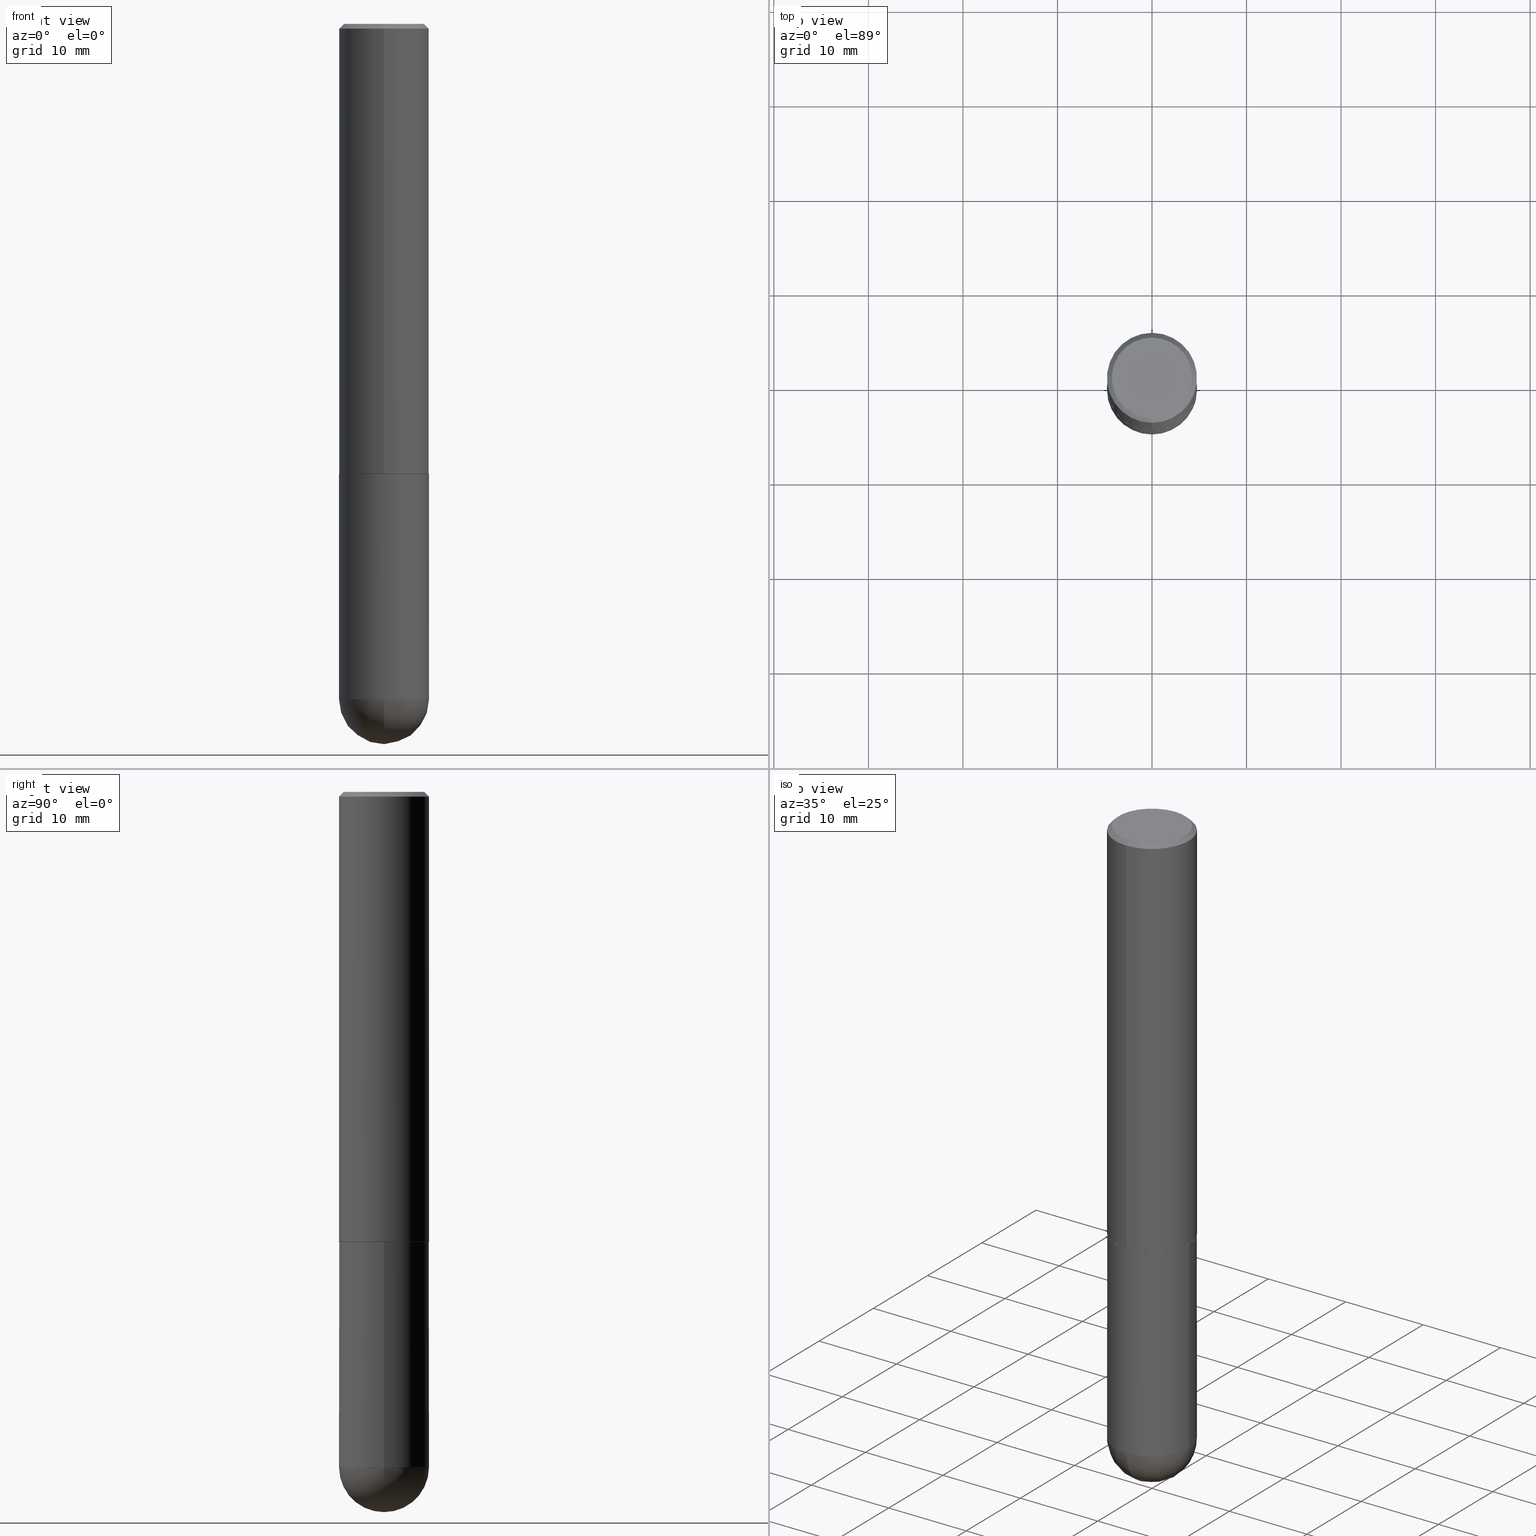
[diagram: canonical four-view strip — front | top / right | iso, engineering-drawing reading convention]
A machine part, canonical four-view strip (front | top / right | iso — engineering-drawing reading convention). The complete STEP part file that produces these views, byte-faithful:
ISO-10303-21;
HEADER;
FILE_DESCRIPTION (( 'STEP AP203' ),
    '1' );
FILE_NAME ('31894.STEP',
    '2024-02-21T17:06:44',
    ( '' ),
    ( '' ),
    'SwSTEP 2.0',
    'SolidWorks 2023',
    '' );
FILE_SCHEMA (( 'CONFIG_CONTROL_DESIGN' ));
ENDSEC;

DATA;
#1 = CARTESIAN_POINT ( 'NONE',  ( 4.889506548922472903E-31, -6.985012041994642398E-17, -0.02000000000000004205 ) ) ;
#2 = DIRECTION ( 'NONE',  ( 1.000000000000000000, -6.982962677686270655E-15, 0.000000000000000000 ) ) ;
#3 = CIRCLE ( 'NONE', #60, 0.1875000000000000555 ) ;
#4 = ORIENTED_EDGE ( 'NONE', *, *, #354, .T. ) ;
#5 = CALENDAR_DATE ( 2024, 21, 2 ) ;
#6 = CIRCLE ( 'NONE', #405, 0.1875000000000000278 ) ;
#7 = ADVANCED_FACE ( 'NONE', ( #130 ), #317, .F. ) ;
#8 = DIRECTION ( 'NONE',  ( -1.000000000000000000, 6.982962677686266711E-15, -4.883557194083113462E-29 ) ) ;
#9 = APPROVAL_DATE_TIME ( #166, #205 ) ;
#10 = DIRECTION ( 'NONE',  ( -2.444753274461231407E-29, 3.492506020997314198E-15, 1.000000000000000000 ) ) ;
#11 = PERSON_AND_ORGANIZATION ( #357, #67 ) ;
#12 = DIRECTION ( 'NONE',  ( -6.982962677686266711E-15, -1.000000000000000000, 3.492506020997314198E-15 ) ) ;
#13 = ADVANCED_FACE ( 'NONE', ( #37 ), #318, .T. ) ;
#14 = VECTOR ( 'NONE', #386, 39.37007874015748143 ) ;
#15 = CIRCLE ( 'NONE', #148, 0.1875000000000002498 ) ;
#16 = APPLICATION_PROTOCOL_DEFINITION ( 'international standard', 'config_control_design', 1994, #66 ) ;
#17 = CARTESIAN_POINT ( 'NONE',  ( 4.583912389614808468E-29, -6.548448789369963973E-15, -1.874999999999999778 ) ) ;
#18 = LINE ( 'NONE', #149, #41 ) ;
#19 = EDGE_CURVE ( 'NONE', #367, #93, #163, .T. ) ;
#20 = AXIS2_PLACEMENT_3D ( 'NONE', #45, #291, #171 ) ;
#21 = PERSON_AND_ORGANIZATION ( #357, #67 ) ;
#22 = VERTEX_POINT ( 'NONE', #104 ) ;
#23 = FACE_OUTER_BOUND ( 'NONE', #277, .T. ) ;
#24 = CARTESIAN_POINT ( 'NONE',  ( -1.332267629550121781E-15, -0.1875000000000102141, -2.812499999999999556 ) ) ;
#25 = CARTESIAN_POINT ( 'NONE',  ( 4.581467636340347610E-29, -6.544956283348966620E-15, -1.874000000000000110 ) ) ;
#26 = CIRCLE ( 'NONE', #20, 0.1674999999999998990 ) ;
#27 = EDGE_LOOP ( 'NONE', ( #342, #310, #407, #62 ) ) ;
#28 = PERSON_AND_ORGANIZATION_ROLE ( 'creator' ) ;
#29 = EDGE_LOOP ( 'NONE', ( #321, #54 ) ) ;
#30 = EDGE_CURVE ( 'NONE', #158, #272, #352, .T. ) ;
#31 = AXIS2_PLACEMENT_3D ( 'NONE', #280, #100, #2 ) ;
#32 = EDGE_LOOP ( 'NONE', ( #224, #161 ) ) ;
#33 = CALENDAR_DATE ( 2024, 21, 2 ) ;
#34 = DIRECTION ( 'NONE',  ( -4.937700262165728178E-15, -0.7071067811867141062, 0.7071067811863809283 ) ) ;
#35 = SHAPE_DEFINITION_REPRESENTATION ( #194, #388 ) ;
#36 = CYLINDRICAL_SURFACE ( 'NONE', #140, 0.1875000000000000555 ) ;
#37 = FACE_OUTER_BOUND ( 'NONE', #192, .T. ) ;
#38 = DATE_AND_TIME ( #33, #404 ) ;
#39 = EDGE_CURVE ( 'NONE', #127, #344, #356, .T. ) ;
#40 = CARTESIAN_POINT ( 'NONE',  ( 4.889506548922472903E-31, -6.985012041994642398E-17, -0.02000000000000004205 ) ) ;
#41 = VECTOR ( 'NONE', #368, 39.37007874015748143 ) ;
#42 = CARTESIAN_POINT ( 'NONE',  ( 6.546761239481810431E-29, -1.029397363363639678E-14, -2.812500000000000000 ) ) ;
#43 = FACE_OUTER_BOUND ( 'NONE', #27, .T. ) ;
#44 = ORIENTED_EDGE ( 'NONE', *, *, #354, .F. ) ;
#45 = CARTESIAN_POINT ( 'NONE',  ( -3.030479401514550430E-45, 4.329257952882943825E-31, 1.239584964737351732E-16 ) ) ;
#46 = DIRECTION ( 'NONE',  ( 2.444753274461231407E-29, -3.492506020997314198E-15, -1.000000000000000000 ) ) ;
#47 = DIRECTION ( 'NONE',  ( -2.444753274461231407E-29, 3.492506020997314198E-15, 1.000000000000000000 ) ) ;
#48 = DIRECTION ( 'NONE',  ( 1.000000000000000000, 0.000000000000000000, 0.000000000000000000 ) ) ;
#49 = SPHERICAL_SURFACE ( 'NONE', #373, 0.1875000000000003331 ) ;
#50 = CC_DESIGN_PERSON_AND_ORGANIZATION_ASSIGNMENT ( #154, #28, ( #346 ) ) ;
#51 = DIRECTION ( 'NONE',  ( -7.105427357600999492E-15, -1.000000000000000000, 0.000000000000000000 ) ) ;
#52 = CARTESIAN_POINT ( 'NONE',  ( 4.585254011597131119E-29, -6.546527510330898707E-15, -1.875000000000000000 ) ) ;
#53 = APPLICATION_PROTOCOL_DEFINITION ( 'international standard', 'config_control_design', 1994, #101 ) ;
#54 = ORIENTED_EDGE ( 'NONE', *, *, #278, .T. ) ;
#55 = DIMENSIONAL_EXPONENTS ( 1.000000000000000000, 0.000000000000000000, 0.000000000000000000, 0.000000000000000000, 0.000000000000000000, 0.000000000000000000, 0.000000000000000000 ) ;
#56 = AXIS2_PLACEMENT_3D ( 'NONE', #42, #8, #136 ) ;
#57 = CARTESIAN_POINT ( 'NONE',  ( 4.889506548922472903E-31, -6.985012041994642398E-17, -0.02000000000000004205 ) ) ;
#58 = CALENDAR_DATE ( 2024, 21, 2 ) ;
#59 = DIRECTION ( 'NONE',  ( -6.982962677686266711E-15, -1.000000000000000000, 2.913971193241876822E-15 ) ) ;
#60 = AXIS2_PLACEMENT_3D ( 'NONE', #264, #137, #232 ) ;
#61 = VECTOR ( 'NONE', #80, 39.37007874015748854 ) ;
#62 = ORIENTED_EDGE ( 'NONE', *, *, #231, .F. ) ;
#63 = DIRECTION ( 'NONE',  ( 1.000000000000000000, -6.982962677686265922E-15, 4.876176775795935793E-29 ) ) ;
#64 = CC_DESIGN_DATE_AND_TIME_ASSIGNMENT ( #38, #384, ( #146 ) ) ;
#65 = ORIENTED_EDGE ( 'NONE', *, *, #128, .F. ) ;
#66 = APPLICATION_CONTEXT ( 'configuration controlled 3d designs of mechanical parts and assemblies' ) ;
#67 = ORGANIZATION ( 'UNSPECIFIED', 'UNSPECIFIED', '' ) ;
#68 = AXIS2_PLACEMENT_3D ( 'NONE', #243, #301, #401 ) ;
#69 = ORIENTED_EDGE ( 'NONE', *, *, #138, .F. ) ;
#70 = ADVANCED_FACE ( 'NONE', ( #188 ), #341, .T. ) ;
#71 = VERTEX_POINT ( 'NONE', #311 ) ;
#72 = FACE_OUTER_BOUND ( 'NONE', #289, .T. ) ;
#73 = DIRECTION ( 'NONE',  ( -2.444753274461231407E-29, 3.492506020997314198E-15, 1.000000000000000000 ) ) ;
#74 = CARTESIAN_POINT ( 'NONE',  ( -1.302322539388442648E-15, -0.1865000000000065217, -1.874999999999999334 ) ) ;
#75 = CIRCLE ( 'NONE', #338, 0.1864999999999999714 ) ;
#76 = CARTESIAN_POINT ( 'NONE',  ( 1.309305502066175797E-15, 0.1874999999999999722, -0.02000000000000069431 ) ) ;
#77 = DIRECTION ( 'NONE',  ( 1.000000000000000000, -6.982962677686266711E-15, 0.000000000000000000 ) ) ;
#78 = CARTESIAN_POINT ( 'NONE',  ( 4.583912389614808468E-29, -6.548448789369963973E-15, -1.874999999999999778 ) ) ;
#79 = CC_DESIGN_PERSON_AND_ORGANIZATION_ASSIGNMENT ( #159, #279, ( #146 ) ) ;
#80 = DIRECTION ( 'NONE',  ( -4.851104656540962697E-15, -0.7071067811865497932, -0.7071067811865451302 ) ) ;
#81 = EDGE_LOOP ( 'NONE', ( #169, #227, #245, #400 ) ) ;
#82 = DIRECTION ( 'NONE',  ( -2.444753274461231407E-29, 3.492506020997314198E-15, 1.000000000000000000 ) ) ;
#83 = LOCAL_TIME ( 12, 6, 44.00000000000000000, #343 ) ;
#84 = DIRECTION ( 'NONE',  ( -2.445468806185136597E-29, 3.491481338843145583E-15, 1.000000000000000000 ) ) ;
#85 = ORIENTED_EDGE ( 'NONE', *, *, #323, .F. ) ;
#86 = ADVANCED_FACE ( 'NONE', ( #409 ), #126, .T. ) ;
#87 = AXIS2_PLACEMENT_3D ( 'NONE', #107, #162, #164 ) ;
#88 = DIRECTION ( 'NONE',  ( -2.444753274461231687E-29, 3.492506020997314198E-15, 1.000000000000000000 ) ) ;
#89 = CIRCLE ( 'NONE', #395, 0.1875000000000000555 ) ;
#90 = CLOSED_SHELL ( 'NONE', ( #327, #332, #13, #261, #70 ) ) ;
#91 = AXIS2_PLACEMENT_3D ( 'NONE', #223, #156, #63 ) ;
#92 = EDGE_CURVE ( 'NONE', #312, #102, #391, .T. ) ;
#93 = VERTEX_POINT ( 'NONE', #392 ) ;
#94 = DATE_AND_TIME ( #185, #83 ) ;
#95 = ORIENTED_EDGE ( 'NONE', *, *, #110, .F. ) ;
#96 = COORDINATED_UNIVERSAL_TIME_OFFSET ( 5, 0, .BEHIND. ) ;
#97 = ORIENTED_EDGE ( 'NONE', *, *, #19, .F. ) ;
#98 = EDGE_CURVE ( 'NONE', #272, #312, #269, .T. ) ;
#99 = AXIS2_PLACEMENT_3D ( 'NONE', #238, #325, #48 ) ;
#100 = DIRECTION ( 'NONE',  ( -2.445468806185136597E-29, 3.491481338843145583E-15, 1.000000000000000000 ) ) ;
#101 = APPLICATION_CONTEXT ( 'configuration controlled 3d designs of mechanical parts and assemblies' ) ;
#102 = VERTEX_POINT ( 'NONE', #330 ) ;
#103 = ORIENTED_EDGE ( 'NONE', *, *, #155, .T. ) ;
#104 = CARTESIAN_POINT ( 'NONE',  ( 1.239475875289312499E-15, 0.1674999999999998990, -4.610362620433146916E-16 ) ) ;
#105 = DIRECTION ( 'NONE',  ( -6.982962677686265922E-15, -1.000000000000000000, 2.929595703661408850E-15 ) ) ;
#106 = EDGE_CURVE ( 'NONE', #93, #251, #6, .T. ) ;
#107 = CARTESIAN_POINT ( 'NONE',  ( 0.000000000000000000, 0.000000000000000000, 0.000000000000000000 ) ) ;
#108 = DIRECTION ( 'NONE',  ( -2.445468806185136597E-29, 3.491481338843145583E-15, 1.000000000000000000 ) ) ;
#109 = CALENDAR_DATE ( 2024, 21, 2 ) ;
#110 = EDGE_CURVE ( 'NONE', #312, #272, #15, .T. ) ;
#111 = AXIS2_PLACEMENT_3D ( 'NONE', #389, #10, #262 ) ;
#112 =( CONVERSION_BASED_UNIT ( 'INCH', #211 ) LENGTH_UNIT ( ) NAMED_UNIT ( #55 ) );
#113 = AXIS2_PLACEMENT_3D ( 'NONE', #362, #337, #398 ) ;
#114 = CARTESIAN_POINT ( 'NONE',  ( 6.546761239481810431E-29, -1.029397363363639678E-14, -2.812500000000000000 ) ) ;
#115 = EDGE_LOOP ( 'NONE', ( #336, #281, #331, #220, #209 ) ) ;
#116 = CARTESIAN_POINT ( 'NONE',  ( -0.1875000000000000555, -6.850891758363436324E-15, -2.812500000000000000 ) ) ;
#117 = EDGE_CURVE ( 'NONE', #71, #186, #363, .T. ) ;
#118 = DIRECTION ( 'NONE',  ( 6.982962677686266711E-15, 1.000000000000000000, -2.913971193241875639E-15 ) ) ;
#119 = ORIENTED_EDGE ( 'NONE', *, *, #240, .F. ) ;
#120 = CC_DESIGN_SECURITY_CLASSIFICATION ( #146, ( #346 ) ) ;
#121 = DIRECTION ( 'NONE',  ( -6.982962677686265922E-15, -1.000000000000000000, 2.929595703661408850E-15 ) ) ;
#122 = AXIS2_PLACEMENT_3D ( 'NONE', #177, #402, #51 ) ;
#123 = EDGE_CURVE ( 'NONE', #412, #195, #365, .T. ) ;
#124 = CC_DESIGN_APPROVAL ( #208, ( #339 ) ) ;
#125 = VECTOR ( 'NONE', #34, 39.37007874015748143 ) ;
#126 = CYLINDRICAL_SURFACE ( 'NONE', #320, 0.1875000000000001388 ) ;
#127 = VERTEX_POINT ( 'NONE', #116 ) ;
#128 = EDGE_CURVE ( 'NONE', #367, #186, #326, .T. ) ;
#129 = CARTESIAN_POINT ( 'NONE',  ( 4.583912389614809028E-29, -6.548448789369964762E-15, -1.875000000000000000 ) ) ;
#130 = FACE_OUTER_BOUND ( 'NONE', #29, .T. ) ;
#131 = CARTESIAN_POINT ( 'NONE',  ( 0.000000000000000000, 0.000000000000000000, 0.000000000000000000 ) ) ;
#132 = AXIS2_PLACEMENT_3D ( 'NONE', #40, #46, #167 ) ;
#133 = LOCAL_TIME ( 12, 6, 44.00000000000000000, #298 ) ;
#134 = ORIENTED_EDGE ( 'NONE', *, *, #98, .T. ) ;
#135 = CARTESIAN_POINT ( 'NONE',  ( 1.309305502066220959E-15, 0.1874999999999934497, -1.875000000000000666 ) ) ;
#136 = DIRECTION ( 'NONE',  ( 6.982962677686266711E-15, 1.000000000000000000, -2.913971193241875639E-15 ) ) ;
#137 = DIRECTION ( 'NONE',  ( -2.444753274461231407E-29, 3.492506020997314198E-15, 1.000000000000000000 ) ) ;
#138 = EDGE_CURVE ( 'NONE', #344, #367, #288, .T. ) ;
#139 = CARTESIAN_POINT ( 'NONE',  ( -0.1875000000000000278, -6.850891758363434746E-15, -1.875000000000000000 ) ) ;
#140 = AXIS2_PLACEMENT_3D ( 'NONE', #131, #225, #349 ) ;
#141 = DIRECTION ( 'NONE',  ( -2.444753274461231407E-29, 3.492506020997314198E-15, 1.000000000000000000 ) ) ;
#142 = EDGE_CURVE ( 'NONE', #272, #195, #18, .T. ) ;
#143 = DATE_AND_TIME ( #58, #172 ) ;
#144 = DIRECTION ( 'NONE',  ( -2.444753274461231407E-29, 3.492506020997314198E-15, 1.000000000000000000 ) ) ;
#145 = LOCAL_TIME ( 12, 6, 44.00000000000000000, #380 ) ;
#146 = SECURITY_CLASSIFICATION ( '', '', #408 ) ;
#147 = CARTESIAN_POINT ( 'NONE',  ( -1.217738394604446442E-15, -0.1674999999999998990, 7.089532549907849394E-16 ) ) ;
#148 = AXIS2_PLACEMENT_3D ( 'NONE', #25, #144, #59 ) ;
#149 = CARTESIAN_POINT ( 'NONE',  ( -1.309305502066175994E-15, -0.1875000000000001388, 6.548448789369969298E-16 ) ) ;
#150 =( NAMED_UNIT ( * ) PLANE_ANGLE_UNIT ( ) SI_UNIT ( $, .RADIAN. ) );
#151 = ORIENTED_EDGE ( 'NONE', *, *, #128, .T. ) ;
#152 = DIRECTION ( 'NONE',  ( 6.982962677686265922E-15, 1.000000000000000000, -3.483106191921934371E-15 ) ) ;
#153 = VECTOR ( 'NONE', #88, 39.37007874015748143 ) ;
#154 = PERSON_AND_ORGANIZATION ( #357, #67 ) ;
#155 = EDGE_CURVE ( 'NONE', #284, #158, #309, .T. ) ;
#156 = DIRECTION ( 'NONE',  ( -2.445468806185136597E-29, 3.491481338843145583E-15, 1.000000000000000000 ) ) ;
#157 = ORIENTED_EDGE ( 'NONE', *, *, #240, .T. ) ;
#158 = VERTEX_POINT ( 'NONE', #207 ) ;
#159 = PERSON_AND_ORGANIZATION ( #357, #67 ) ;
#160 = APPROVAL_PERSON_ORGANIZATION ( #307, #208, #265 ) ;
#161 = ORIENTED_EDGE ( 'NONE', *, *, #406, .T. ) ;
#162 = DIRECTION ( 'NONE',  ( -2.444753274461231407E-29, 3.492506020997314198E-15, 1.000000000000000000 ) ) ;
#163 = LINE ( 'NONE', #259, #14 ) ;
#164 = DIRECTION ( 'NONE',  ( -6.982962677686266711E-15, -1.000000000000000000, 3.492506020997314198E-15 ) ) ;
#165 = EDGE_LOOP ( 'NONE', ( #229, #348, #218, #313 ) ) ;
#166 = DATE_AND_TIME ( #5, #145 ) ;
#167 = DIRECTION ( 'NONE',  ( 6.982962677686265922E-15, 1.000000000000000000, -3.483106191921934371E-15 ) ) ;
#168 = EDGE_CURVE ( 'NONE', #158, #284, #75, .T. ) ;
#169 = ORIENTED_EDGE ( 'NONE', *, *, #92, .F. ) ;
#170 = DIRECTION ( 'NONE',  ( 4.937700262164546464E-15, 0.7071067811865447972, -0.7071067811865500152 ) ) ;
#171 = DIRECTION ( 'NONE',  ( -6.982962677686265922E-15, -1.000000000000000000, 3.492506020997314198E-15 ) ) ;
#172 = LOCAL_TIME ( 12, 6, 44.00000000000000000, #335 ) ;
#173 = ADVANCED_FACE ( 'NONE', ( #299 ), #340, .T. ) ;
#174 = CONICAL_SURFACE ( 'NONE', #132, 0.1875000000000000555, 0.7853981633974481680 ) ;
#175 = CARTESIAN_POINT ( 'NONE',  ( 0.1875000000000000555, -9.492464889979800759E-15, -2.812500000000000000 ) ) ;
#176 = CARTESIAN_POINT ( 'NONE',  ( 4.583912389614808468E-29, -6.548448789369963973E-15, -1.874999999999999778 ) ) ;
#177 = CARTESIAN_POINT ( 'NONE',  ( 6.546761239481810431E-29, -1.029397363363639678E-14, -2.812500000000000000 ) ) ;
#178 = CARTESIAN_POINT ( 'NONE',  ( 6.877881017395696678E-29, -9.819791265496348060E-15, -2.812500000000000000 ) ) ;
#179 = APPROVAL_STATUS ( 'not_yet_approved' ) ;
#180 = ORIENTED_EDGE ( 'NONE', *, *, #92, .T. ) ;
#181 = DIRECTION ( 'NONE',  ( 2.444753274461231407E-29, -3.492506020997314198E-15, -1.000000000000000000 ) ) ;
#182 = CC_DESIGN_PERSON_AND_ORGANIZATION_ASSIGNMENT ( #21, #271, ( #339 ) ) ;
#183 = DIRECTION ( 'NONE',  ( -2.444753274461231407E-29, 3.492506020997314198E-15, 1.000000000000000000 ) ) ;
#184 = CC_DESIGN_PERSON_AND_ORGANIZATION_ASSIGNMENT ( #187, #314, ( #346 ) ) ;
#185 = CALENDAR_DATE ( 2024, 21, 2 ) ;
#186 = VERTEX_POINT ( 'NONE', #305 ) ;
#187 = PERSON_AND_ORGANIZATION ( #357, #67 ) ;
#188 = FACE_OUTER_BOUND ( 'NONE', #115, .T. ) ;
#189 = EDGE_LOOP ( 'NONE', ( #157, #378, #212, #97, #151 ) ) ;
#190 = PLANE ( 'NONE',  #382 ) ;
#191 = ADVANCED_FACE ( 'NONE', ( #23 ), #190, .F. ) ;
#192 = EDGE_LOOP ( 'NONE', ( #44, #242, #65, #69 ) ) ;
#193 = VECTOR ( 'NONE', #394, 39.37007874015748143 ) ;
#194 = PRODUCT_DEFINITION_SHAPE ( 'NONE', 'NONE',  #339 ) ;
#195 = VERTEX_POINT ( 'NONE', #358 ) ;
#196 = FACE_OUTER_BOUND ( 'NONE', #189, .T. ) ;
#197 = ORIENTED_EDGE ( 'NONE', *, *, #30, .F. ) ;
#198 = ORIENTED_EDGE ( 'NONE', *, *, #117, .F. ) ;
#199 = EDGE_CURVE ( 'NONE', #102, #195, #89, .T. ) ;
#200 = CARTESIAN_POINT ( 'NONE',  ( 1.332267629550212500E-15, 0.1874999999999936995, -1.874000000000000554 ) ) ;
#201 = CLOSED_SHELL ( 'NONE', ( #316, #297, #267, #173, #86, #369, #191, #7 ) ) ;
#202 = AXIS2_PLACEMENT_3D ( 'NONE', #135, #319, #385 ) ;
#203 = DIRECTION ( 'NONE',  ( 2.444753274461231127E-29, -3.492506020997314198E-15, -1.000000000000000000 ) ) ;
#204 = LINE ( 'NONE', #76, #263 ) ;
#205 = APPROVAL ( #286, 'UNSPECIFIED' ) ;
#206 = CC_DESIGN_APPROVAL ( #205, ( #146 ) ) ;
#207 = CARTESIAN_POINT ( 'NONE',  ( -1.302322539388442648E-15, -0.1865000000000065217, -1.874999999999999334 ) ) ;
#208 = APPROVAL ( #179, 'UNSPECIFIED' ) ;
#209 = ORIENTED_EDGE ( 'NONE', *, *, #406, .F. ) ;
#210 = DIRECTION ( 'NONE',  ( -6.982962677686265922E-15, -1.000000000000000000, 2.929595703661408850E-15 ) ) ;
#211 = LENGTH_MEASURE_WITH_UNIT ( LENGTH_MEASURE( 0.02539999999999999897 ), #396 );
#212 = ORIENTED_EDGE ( 'NONE', *, *, #106, .F. ) ;
#213 = DIRECTION ( 'NONE',  ( -2.445468806185136597E-29, 3.491481338843145583E-15, 1.000000000000000000 ) ) ;
#214 = DIRECTION ( 'NONE',  ( 1.000000000000000000, -6.982962677686266711E-15, 0.000000000000000000 ) ) ;
#215 = PERSON_AND_ORGANIZATION ( #357, #67 ) ;
#216 = AXIS2_PLACEMENT_3D ( 'NONE', #283, #73, #105 ) ;
#217 = AXIS2_PLACEMENT_3D ( 'NONE', #258, #108, #324 ) ;
#218 = ORIENTED_EDGE ( 'NONE', *, *, #231, .T. ) ;
#219 = UNCERTAINTY_MEASURE_WITH_UNIT (LENGTH_MEASURE( 1.000000000000000082E-05 ), #112, 'distance_accuracy_value', 'NONE');
#220 = ORIENTED_EDGE ( 'NONE', *, *, #19, .T. ) ;
#221 = ORIENTED_EDGE ( 'NONE', *, *, #306, .F. ) ;
#222 = CIRCLE ( 'NONE', #334, 0.1875000000000000278 ) ;
#223 = CARTESIAN_POINT ( 'NONE',  ( 0.000000000000000000, 0.000000000000000000, 0.000000000000000000 ) ) ;
#224 = ORIENTED_EDGE ( 'NONE', *, *, #106, .T. ) ;
#225 = DIRECTION ( 'NONE',  ( -2.445468806185136597E-29, 3.491481338843145583E-15, 1.000000000000000000 ) ) ;
#226 = PRODUCT_RELATED_PRODUCT_CATEGORY ( 'detail', '', ( #252 ) ) ;
#227 = ORIENTED_EDGE ( 'NONE', *, *, #110, .T. ) ;
#228 = DIRECTION ( 'NONE',  ( -6.982962677686265922E-15, -1.000000000000000000, 3.483106191921934371E-15 ) ) ;
#229 = ORIENTED_EDGE ( 'NONE', *, *, #123, .F. ) ;
#230 = LINE ( 'NONE', #390, #315 ) ;
#231 = EDGE_CURVE ( 'NONE', #22, #102, #204, .T. ) ;
#232 = DIRECTION ( 'NONE',  ( -6.982962677686265922E-15, -1.000000000000000000, 3.483106191921934371E-15 ) ) ;
#233 = MANIFOLD_SOLID_BREP ( 'Body-Move/Copy2[1]', #90 ) ;
#234 = MANIFOLD_SOLID_BREP ( 'Body-Move/Copy2[2]', #201 ) ;
#235 = DESIGN_CONTEXT ( 'detailed design', #66, 'design' ) ;
#236 =( NAMED_UNIT ( * ) SI_UNIT ( $, .STERADIAN. ) SOLID_ANGLE_UNIT ( ) );
#237 = CIRCLE ( 'NONE', #217, 0.1875000000000000555 ) ;
#238 = CARTESIAN_POINT ( 'NONE',  ( 0.000000000000000000, 0.000000000000000000, 0.000000000000000000 ) ) ;
#239 = DIRECTION ( 'NONE',  ( 1.000000000000000000, -6.982962677686265922E-15, 4.883557194083112340E-29 ) ) ;
#240 = EDGE_CURVE ( 'NONE', #186, #127, #237, .T. ) ;
#241 = CARTESIAN_POINT ( 'NONE',  ( 6.546761239481810431E-29, -1.029397363363639678E-14, -2.812500000000000000 ) ) ;
#242 = ORIENTED_EDGE ( 'NONE', *, *, #117, .T. ) ;
#243 = CARTESIAN_POINT ( 'NONE',  ( 6.877881017395696678E-29, -9.819791265496348060E-15, -2.812500000000000000 ) ) ;
#244 = PERSON_AND_ORGANIZATION_ROLE ( 'design_owner' ) ;
#245 = ORIENTED_EDGE ( 'NONE', *, *, #142, .T. ) ;
#246 = CIRCLE ( 'NONE', #122, 0.1875000000000003331 ) ;
#247 = EDGE_CURVE ( 'NONE', #22, #412, #26, .T. ) ;
#248 = DIRECTION ( 'NONE',  ( 1.000000000000000000, -6.982962677686270655E-15, 0.000000000000000000 ) ) ;
#249 = CC_DESIGN_PERSON_AND_ORGANIZATION_ASSIGNMENT ( #295, #244, ( #252 ) ) ;
#250 = APPROVAL_STATUS ( 'not_yet_approved' ) ;
#251 = VERTEX_POINT ( 'NONE', #139 ) ;
#252 = PRODUCT ( '31894', '31894', '', ( #328 ) ) ;
#253 = DIRECTION ( 'NONE',  ( -2.444753274461231127E-29, 3.492506020997314198E-15, 1.000000000000000000 ) ) ;
#254 = CARTESIAN_POINT ( 'NONE',  ( 1.169646248512448806E-15, 0.1674999999999998990, -5.230155102801821796E-16 ) ) ;
#255 = APPROVAL ( #250, 'UNSPECIFIED' ) ;
#256 = AXIS2_PLACEMENT_3D ( 'NONE', #17, #370, #121 ) ;
#257 = EDGE_LOOP ( 'NONE', ( #134, #180, #221, #397 ) ) ;
#258 = CARTESIAN_POINT ( 'NONE',  ( 6.877881017395696678E-29, -9.819791265496348060E-15, -2.812500000000000000 ) ) ;
#259 = CARTESIAN_POINT ( 'NONE',  ( 0.1875000000000000555, -1.309305502066175205E-15, 9.142831454617382414E-30 ) ) ;
#260 = PLANE ( 'NONE',  #202 ) ;
#261 = ADVANCED_FACE ( 'NONE', ( #287 ), #260, .F. ) ;
#262 = DIRECTION ( 'NONE',  ( -6.982962677686265922E-15, -1.000000000000000000, 3.492506020997314198E-15 ) ) ;
#263 = VECTOR ( 'NONE', #170, 39.37007874015748854 ) ;
#264 = CARTESIAN_POINT ( 'NONE',  ( 4.889506548922472903E-31, -6.985012041994642398E-17, -0.02000000000000004205 ) ) ;
#265 = APPROVAL_ROLE ( '' ) ;
#266 = AXIS2_PLACEMENT_3D ( 'NONE', #78, #82, #273 ) ;
#267 = ADVANCED_FACE ( 'NONE', ( #43 ), #174, .T. ) ;
#268 =( GEOMETRIC_REPRESENTATION_CONTEXT ( 3 ) GLOBAL_UNCERTAINTY_ASSIGNED_CONTEXT ( ( #219 ) ) GLOBAL_UNIT_ASSIGNED_CONTEXT ( ( #112, #150, #236 ) ) REPRESENTATION_CONTEXT ( 'NONE', 'WORKASPACE' ) );
#269 = CIRCLE ( 'NONE', #113, 0.1875000000000002498 ) ;
#270 = CARTESIAN_POINT ( 'NONE',  ( 1.332267629550188637E-15, 0.1875000000000001388, -6.548448789369969298E-16 ) ) ;
#271 = PERSON_AND_ORGANIZATION_ROLE ( 'creator' ) ;
#272 = VERTEX_POINT ( 'NONE', #290 ) ;
#273 = DIRECTION ( 'NONE',  ( -6.982962677686265922E-15, -1.000000000000000000, 2.929595703661408850E-15 ) ) ;
#274 = CARTESIAN_POINT ( 'NONE',  ( -0.1875000000000000555, 1.332267629550188243E-15, -9.223003294227950793E-30 ) ) ;
#275 = DIRECTION ( 'NONE',  ( 6.982962677686265922E-15, 1.000000000000000000, 0.000000000000000000 ) ) ;
#276 = CONICAL_SURFACE ( 'NONE', #256, 0.1864999999999999714, 0.7853981633976873100 ) ;
#277 = EDGE_LOOP ( 'NONE', ( #304, #371 ) ) ;
#278 = EDGE_CURVE ( 'NONE', #412, #22, #360, .T. ) ;
#279 = PERSON_AND_ORGANIZATION_ROLE ( 'classification_officer' ) ;
#280 = CARTESIAN_POINT ( 'NONE',  ( 6.877881017395696678E-29, -9.819791265496348060E-15, -2.812500000000000000 ) ) ;
#281 = ORIENTED_EDGE ( 'NONE', *, *, #39, .T. ) ;
#282 = EDGE_LOOP ( 'NONE', ( #347, #410, #383, #197 ) ) ;
#283 = CARTESIAN_POINT ( 'NONE',  ( 4.583912389614808468E-29, -6.548448789369963973E-15, -1.874999999999999778 ) ) ;
#284 = VERTEX_POINT ( 'NONE', #355 ) ;
#285 = AXIS2_PLACEMENT_3D ( 'NONE', #57, #181, #152 ) ;
#286 = APPROVAL_STATUS ( 'not_yet_approved' ) ;
#287 = FACE_OUTER_BOUND ( 'NONE', #32, .T. ) ;
#288 = CIRCLE ( 'NONE', #68, 0.1875000000000000555 ) ;
#289 = EDGE_LOOP ( 'NONE', ( #198, #4, #376, #119 ) ) ;
#290 = CARTESIAN_POINT ( 'NONE',  ( -1.309305502066130832E-15, -0.1875000000000068001, -1.873999999999999444 ) ) ;
#291 = DIRECTION ( 'NONE',  ( -2.444753274461231407E-29, 3.492506020997314198E-15, 1.000000000000000000 ) ) ;
#292 = APPROVAL_ROLE ( '' ) ;
#293 = CYLINDRICAL_SURFACE ( 'NONE', #87, 0.1875000000000001388 ) ;
#294 = CC_DESIGN_APPROVAL ( #255, ( #346 ) ) ;
#295 = PERSON_AND_ORGANIZATION ( #357, #67 ) ;
#296 = CARTESIAN_POINT ( 'NONE',  ( 0.000000000000000000, 0.000000000000000000, 0.000000000000000000 ) ) ;
#297 = ADVANCED_FACE ( 'NONE', ( #387 ), #293, .T. ) ;
#298 = COORDINATED_UNIVERSAL_TIME_OFFSET ( 5, 0, .BEHIND. ) ;
#299 = FACE_OUTER_BOUND ( 'NONE', #165, .T. ) ;
#300 = CARTESIAN_POINT ( 'NONE',  ( 4.585254011597131119E-29, -6.546527510330898707E-15, -1.875000000000000000 ) ) ;
#301 = DIRECTION ( 'NONE',  ( -2.445468806185136597E-29, 3.491481338843145583E-15, 1.000000000000000000 ) ) ;
#302 = AXIS2_PLACEMENT_3D ( 'NONE', #254, #203, #350 ) ;
#303 = DATE_AND_TIME ( #109, #133 ) ;
#304 = ORIENTED_EDGE ( 'NONE', *, *, #168, .F. ) ;
#305 = CARTESIAN_POINT ( 'NONE',  ( 1.309305502066243245E-15, 0.1874999999999901468, -2.812500000000000444 ) ) ;
#306 = EDGE_CURVE ( 'NONE', #195, #102, #3, .T. ) ;
#307 = PERSON_AND_ORGANIZATION ( #357, #67 ) ;
#308 = AXIS2_PLACEMENT_3D ( 'NONE', #178, #403, #248 ) ;
#309 = CIRCLE ( 'NONE', #266, 0.1864999999999999714 ) ;
#310 = ORIENTED_EDGE ( 'NONE', *, *, #123, .T. ) ;
#311 = CARTESIAN_POINT ( 'NONE',  ( 7.013303824602581502E-29, -1.093714532092748102E-14, -3.000000000000000444 ) ) ;
#312 = VERTEX_POINT ( 'NONE', #200 ) ;
#313 = ORIENTED_EDGE ( 'NONE', *, *, #199, .T. ) ;
#314 = PERSON_AND_ORGANIZATION_ROLE ( 'design_supplier' ) ;
#315 = VECTOR ( 'NONE', #359, 39.37007874015748143 ) ;
#316 = ADVANCED_FACE ( 'NONE', ( #351 ), #393, .T. ) ;
#317 = PLANE ( 'NONE',  #302 ) ;
#318 = SPHERICAL_SURFACE ( 'NONE', #56, 0.1875000000000003331 ) ;
#319 = DIRECTION ( 'NONE',  ( 2.438088387897960049E-29, -3.491481338843145188E-15, -1.000000000000000000 ) ) ;
#320 = AXIS2_PLACEMENT_3D ( 'NONE', #296, #47, #12 ) ;
#321 = ORIENTED_EDGE ( 'NONE', *, *, #247, .T. ) ;
#322 = DIRECTION ( 'NONE',  ( -6.982962677686265922E-15, -1.000000000000000000, 3.492506020997314198E-15 ) ) ;
#323 = EDGE_CURVE ( 'NONE', #284, #312, #230, .T. ) ;
#324 = DIRECTION ( 'NONE',  ( 1.000000000000000000, -6.982962677686270655E-15, 0.000000000000000000 ) ) ;
#325 = DIRECTION ( 'NONE',  ( 0.000000000000000000, 0.000000000000000000, 1.000000000000000000 ) ) ;
#326 = CIRCLE ( 'NONE', #308, 0.1875000000000000555 ) ;
#327 = ADVANCED_FACE ( 'NONE', ( #196 ), #36, .T. ) ;
#328 = MECHANICAL_CONTEXT ( 'NONE', #101, 'mechanical' ) ;
#329 = LINE ( 'NONE', #274, #193 ) ;
#330 = CARTESIAN_POINT ( 'NONE',  ( 1.309305502066175797E-15, 0.1874999999999999722, -0.02000000000000069431 ) ) ;
#331 = ORIENTED_EDGE ( 'NONE', *, *, #138, .T. ) ;
#332 = ADVANCED_FACE ( 'NONE', ( #72 ), #49, .T. ) ;
#333 = CARTESIAN_POINT ( 'NONE',  ( -1.286343374582161774E-15, -0.1875000000000001110, -0.01999999999999938979 ) ) ;
#334 = AXIS2_PLACEMENT_3D ( 'NONE', #300, #84, #77 ) ;
#335 = COORDINATED_UNIVERSAL_TIME_OFFSET ( 5, 0, .BEHIND. ) ;
#336 = ORIENTED_EDGE ( 'NONE', *, *, #345, .F. ) ;
#337 = DIRECTION ( 'NONE',  ( -2.444753274461231407E-29, 3.492506020997314198E-15, 1.000000000000000000 ) ) ;
#338 = AXIS2_PLACEMENT_3D ( 'NONE', #176, #183, #210 ) ;
#339 = PRODUCT_DEFINITION ( 'UNKNOWN', '', #346, #235 ) ;
#340 = CONICAL_SURFACE ( 'NONE', #285, 0.1875000000000000555, 0.7853981633974481680 ) ;
#341 = CYLINDRICAL_SURFACE ( 'NONE', #91, 0.1875000000000000555 ) ;
#342 = ORIENTED_EDGE ( 'NONE', *, *, #278, .F. ) ;
#343 = COORDINATED_UNIVERSAL_TIME_OFFSET ( 5, 0, .BEHIND. ) ;
#344 = VERTEX_POINT ( 'NONE', #24 ) ;
#345 = EDGE_CURVE ( 'NONE', #127, #251, #329, .T. ) ;
#346 = PRODUCT_DEFINITION_FORMATION_WITH_SPECIFIED_SOURCE ( 'ANY', '', #252, .NOT_KNOWN. ) ;
#347 = ORIENTED_EDGE ( 'NONE', *, *, #168, .T. ) ;
#348 = ORIENTED_EDGE ( 'NONE', *, *, #247, .F. ) ;
#349 = DIRECTION ( 'NONE',  ( 1.000000000000000000, -6.982962677686265922E-15, 4.876176775795935793E-29 ) ) ;
#350 = DIRECTION ( 'NONE',  ( 6.982962677686265922E-15, 1.000000000000000000, -3.492506020997314198E-15 ) ) ;
#351 = FACE_OUTER_BOUND ( 'NONE', #282, .T. ) ;
#352 = LINE ( 'NONE', #74, #125 ) ;
#353 = APPROVAL_PERSON_ORGANIZATION ( #215, #255, #374 ) ;
#354 = EDGE_CURVE ( 'NONE', #71, #344, #246, .T. ) ;
#355 = CARTESIAN_POINT ( 'NONE',  ( 1.328714915871433690E-15, 0.1864999999999934210, -1.875000000000000444 ) ) ;
#356 = CIRCLE ( 'NONE', #31, 0.1875000000000000555 ) ;
#357 = PERSON ( 'UNSPECIFIED', 'UNSPECIFIED', 'UNSPECIFIED', ('UNSPECIFIED'), ('UNSPECIFIED'), ('UNSPECIFIED') ) ;
#358 = CARTESIAN_POINT ( 'NONE',  ( -1.286343374582161774E-15, -0.1875000000000001110, -0.01999999999999938979 ) ) ;
#359 = DIRECTION ( 'NONE',  ( 5.024295867789263036E-15, 0.7071067811867189912, 0.7071067811863760433 ) ) ;
#360 = CIRCLE ( 'NONE', #111, 0.1674999999999998990 ) ;
#361 = APPROVAL_DATE_TIME ( #303, #208 ) ;
#362 = CARTESIAN_POINT ( 'NONE',  ( 4.581467636340347610E-29, -6.544956283348966620E-15, -1.874000000000000110 ) ) ;
#363 = CIRCLE ( 'NONE', #377, 0.1875000000000003331 ) ;
#364 = DATE_TIME_ROLE ( 'creation_date' ) ;
#365 = LINE ( 'NONE', #333, #61 ) ;
#366 = FACE_OUTER_BOUND ( 'NONE', #381, .T. ) ;
#367 = VERTEX_POINT ( 'NONE', #175 ) ;
#368 = DIRECTION ( 'NONE',  ( -2.444753274461231687E-29, 3.492506020997314198E-15, 1.000000000000000000 ) ) ;
#369 = ADVANCED_FACE ( 'NONE', ( #366 ), #276, .T. ) ;
#370 = DIRECTION ( 'NONE',  ( -2.444753274461231407E-29, 3.492506020997314198E-15, 1.000000000000000000 ) ) ;
#371 = ORIENTED_EDGE ( 'NONE', *, *, #155, .F. ) ;
#372 = APPROVAL_PERSON_ORGANIZATION ( #11, #205, #292 ) ;
#373 = AXIS2_PLACEMENT_3D ( 'NONE', #241, #399, #118 ) ;
#374 = APPROVAL_ROLE ( '' ) ;
#375 = CC_DESIGN_DATE_AND_TIME_ASSIGNMENT ( #143, #364, ( #339 ) ) ;
#376 = ORIENTED_EDGE ( 'NONE', *, *, #39, .F. ) ;
#377 = AXIS2_PLACEMENT_3D ( 'NONE', #114, #239, #275 ) ;
#378 = ORIENTED_EDGE ( 'NONE', *, *, #345, .T. ) ;
#379 = APPROVAL_DATE_TIME ( #94, #255 ) ;
#380 = COORDINATED_UNIVERSAL_TIME_OFFSET ( 5, 0, .BEHIND. ) ;
#381 = EDGE_LOOP ( 'NONE', ( #85, #103, #411, #95 ) ) ;
#382 = AXIS2_PLACEMENT_3D ( 'NONE', #129, #253, #322 ) ;
#383 = ORIENTED_EDGE ( 'NONE', *, *, #98, .F. ) ;
#384 = DATE_TIME_ROLE ( 'classification_date' ) ;
#385 = DIRECTION ( 'NONE',  ( -1.000000000000000000, 6.982962677686265922E-15, -4.876176775795935793E-29 ) ) ;
#386 = DIRECTION ( 'NONE',  ( -2.445468806185136877E-29, 3.491481338843145188E-15, 1.000000000000000000 ) ) ;
#387 = FACE_OUTER_BOUND ( 'NONE', #257, .T. ) ;
#388 = ADVANCED_BREP_SHAPE_REPRESENTATION ( '31894', ( #233, #234, #99 ), #268 ) ;
#389 = CARTESIAN_POINT ( 'NONE',  ( -3.030479401514550430E-45, 4.329257952882943825E-31, 1.239584964737351732E-16 ) ) ;
#390 = CARTESIAN_POINT ( 'NONE',  ( 1.325162202192632397E-15, 0.1864999999999934210, -1.875000000000000444 ) ) ;
#391 = LINE ( 'NONE', #270, #153 ) ;
#392 = CARTESIAN_POINT ( 'NONE',  ( 0.1875000000000000278, -7.855833012397073715E-15, -1.875000000000000000 ) ) ;
#393 = CONICAL_SURFACE ( 'NONE', #216, 0.1864999999999999714, 0.7853981633976873100 ) ;
#394 = DIRECTION ( 'NONE',  ( -2.445468806185136877E-29, 3.491481338843145188E-15, 1.000000000000000000 ) ) ;
#395 = AXIS2_PLACEMENT_3D ( 'NONE', #1, #141, #228 ) ;
#396 =( LENGTH_UNIT ( ) NAMED_UNIT ( * ) SI_UNIT ( $, .METRE. ) );
#397 = ORIENTED_EDGE ( 'NONE', *, *, #142, .F. ) ;
#398 = DIRECTION ( 'NONE',  ( -6.982962677686266711E-15, -1.000000000000000000, 2.913971193241876822E-15 ) ) ;
#399 = DIRECTION ( 'NONE',  ( -1.000000000000000000, 6.982962677686266711E-15, -4.883557194083113462E-29 ) ) ;
#400 = ORIENTED_EDGE ( 'NONE', *, *, #199, .F. ) ;
#401 = DIRECTION ( 'NONE',  ( 1.000000000000000000, -6.982962677686270655E-15, 0.000000000000000000 ) ) ;
#402 = DIRECTION ( 'NONE',  ( -1.000000000000000000, 7.105427357601001070E-15, -4.926315508542082329E-29 ) ) ;
#403 = DIRECTION ( 'NONE',  ( -2.445468806185136597E-29, 3.491481338843145583E-15, 1.000000000000000000 ) ) ;
#404 = LOCAL_TIME ( 12, 6, 44.00000000000000000, #96 ) ;
#405 = AXIS2_PLACEMENT_3D ( 'NONE', #52, #213, #214 ) ;
#406 = EDGE_CURVE ( 'NONE', #251, #93, #222, .T. ) ;
#407 = ORIENTED_EDGE ( 'NONE', *, *, #306, .T. ) ;
#408 = SECURITY_CLASSIFICATION_LEVEL ( 'unclassified' ) ;
#409 = FACE_OUTER_BOUND ( 'NONE', #81, .T. ) ;
#410 = ORIENTED_EDGE ( 'NONE', *, *, #323, .T. ) ;
#411 = ORIENTED_EDGE ( 'NONE', *, *, #30, .T. ) ;
#412 = VERTEX_POINT ( 'NONE', #147 ) ;
ENDSEC;
END-ISO-10303-21;
